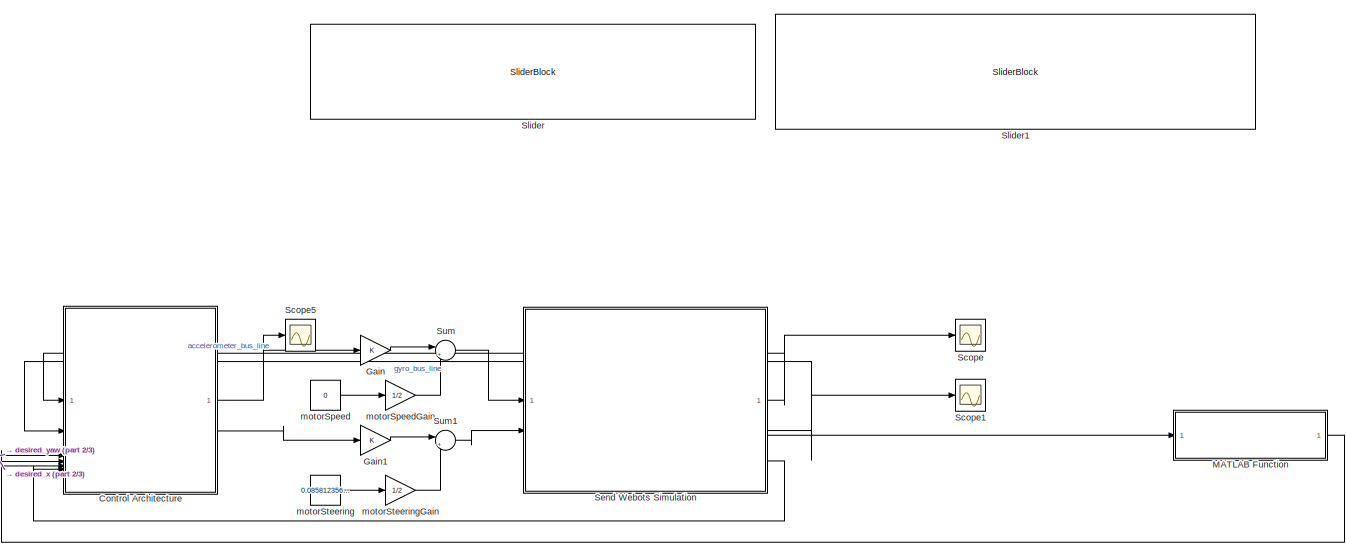
[diagram: root canvas - part 1/3, full width, top band]
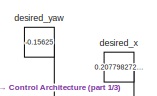
[diagram: root canvas - part 2/3, middle left region]
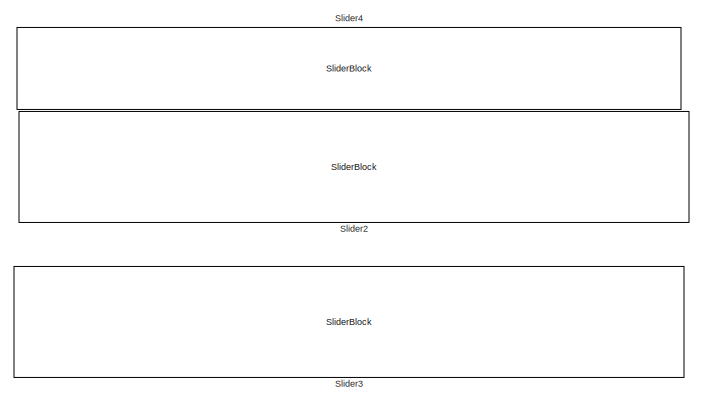
[diagram: root canvas - part 3/3, bottom center region]
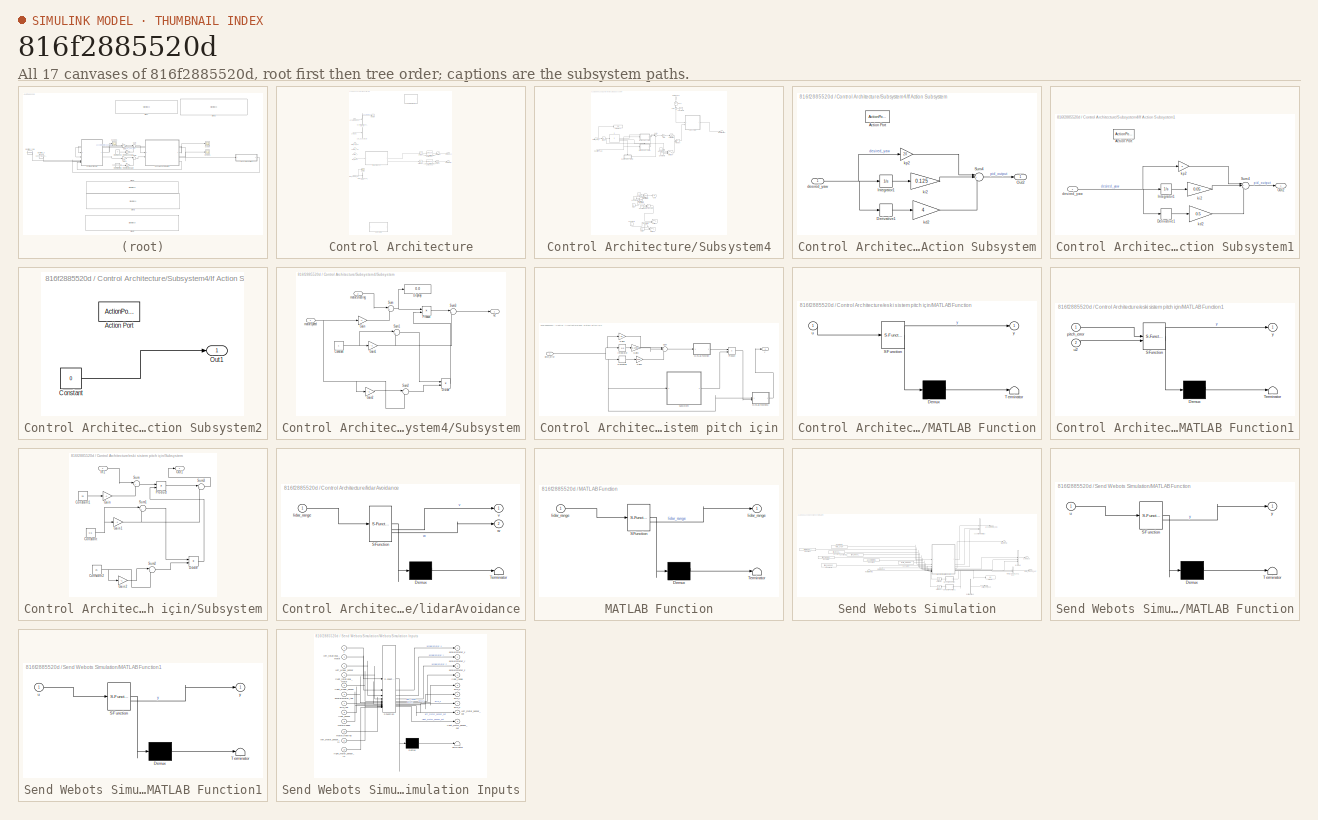
[diagram: thumbnail index - all 17 canvases of the model, root first then tree order]
MODEL slx_816f2885520d
KIND model
CONFIG AbsTol = auto
CONFIG EnableMultiTasking = off
CONFIG FixedStep = 0.016
CONFIG MaxStep = auto
CONFIG MinStep = auto
CONFIG RelTol = 1e-3
CONFIG SampleTimeConstraint = Unconstrained
CONFIG SolverName = ode5
CONFIG StartTime = 0.0
CONFIG StopTime = inf
BLOCK [SubSystem] Control Architecture
BLOCK [Integrator] Control Architecture/Integrator
BLOCK [Reference] Control Architecture/Low-Pass Filter (Discrete or Continuous)  REF=eeGeneralControl/Low-Pass Filter
(Discrete or Continuous)
  LibrarySourceBlock = ee_sl_lib/General Control/Low-Pass Filter\n(Discrete or Continuous)
  SourceBlock = eeGeneralControl/Low-Pass Filter\n(Discrete or Continuous)
  SourceType = Low-Pass Filter (Discrete or Continuous)
BLOCK [Reference] Control Architecture/Low-Pass Filter (Discrete or Continuous)1  REF=eeGeneralControl/Low-Pass Filter
(Discrete or Continuous)
  LibrarySourceBlock = ee_sl_lib/General Control/Low-Pass Filter\n(Discrete or Continuous)
  SourceBlock = eeGeneralControl/Low-Pass Filter\n(Discrete or Continuous)
  SourceType = Low-Pass Filter (Discrete or Continuous)
BLOCK [Saturate] Control Architecture/Saturation1
  LowerLimit = -15
  UpperLimit = 15
BLOCK [Saturate] Control Architecture/Saturation2
  LowerLimit = -15
  UpperLimit = 15
BLOCK [Scope] Control Architecture/Scope
  Floating = off
  NumInputPorts = 1
  ScopeSpecificationString = Simulink.scopes.TimeScopeBlockCfg('CurrentConfiguration', extmgr.ConfigurationSet(extmgr.Configuration('Core','General UI',true),extmgr.Configuration('Core','Source UI',true),extmgr.Configuration('Sources','WiredSimulink',true,'DataLoggingVariableName','ScopeData1'),extmgr.Configuration('Visuals','Time Domain',true,'SerializedDisplays',{struct('MinYLimReal','-1.00000','MaxYLimReal','1.00000','YLab...<+1645ch>
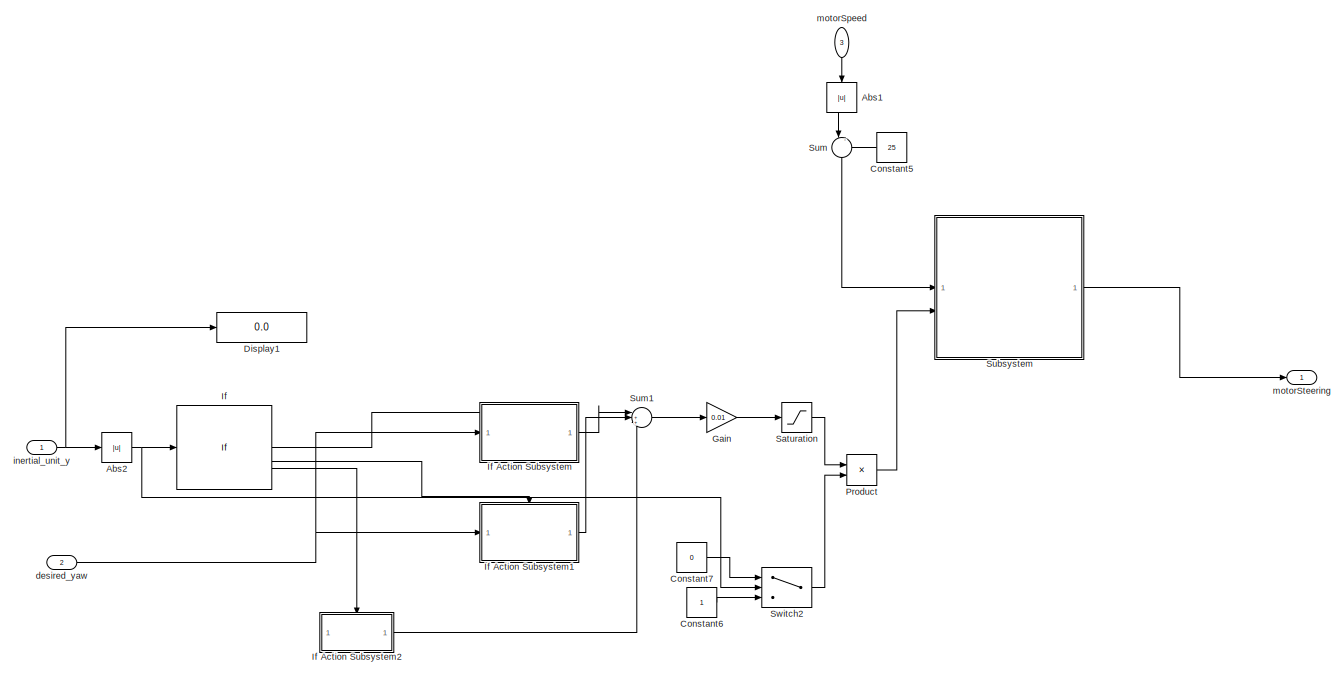
[diagram: Control Architecture/Subsystem4 - part 1/2, full width, top band]
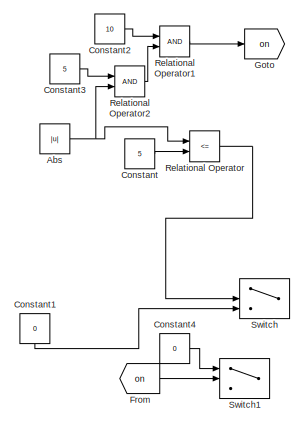
[diagram: Control Architecture/Subsystem4 - part 2/2, bottom center region]
BLOCK [SubSystem] Control Architecture/Subsystem4
  Commented = on
  PortSchema = {"entries":[{"content":{"sides":[{"content":{"connectorIds":["In1","In2"]},"type":"ConnectorPlacement.EquallySpacedRectSide","uuid":"8ea77c90-69e3-4b28-847a-36c3733c4ca1"},{"content":{"connectorIds":["Out1"],"side":"RIGHT"},"type":"ConnectorPlacement.EquallySpacedRectSide","uuid":"94f1f4b2-c797-44bf-abc2-6d3fe195cf34"},{"content":{"connectorIds":["In3"],"side":"TOP"},"type":"ConnectorPlacement.Equ...<+251ch>
BLOCK [Abs] Control Architecture/Subsystem4/Abs
  Commented = on
  SaturateOnIntegerOverflow = off
BLOCK [Abs] Control Architecture/Subsystem4/Abs1
  NameLocation = left
  SaturateOnIntegerOverflow = off
BLOCK [Abs] Control Architecture/Subsystem4/Abs2
  SaturateOnIntegerOverflow = off
BLOCK [Constant] Control Architecture/Subsystem4/Constant
  Commented = on
  Value = 5
BLOCK [Constant] Control Architecture/Subsystem4/Constant1
  Commented = on
  NameLocation = left
  Value = 0
BLOCK [Constant] Control Architecture/Subsystem4/Constant2
  Commented = on
  Value = 10
BLOCK [Constant] Control Architecture/Subsystem4/Constant3
  Commented = on
  Value = 5
BLOCK [Constant] Control Architecture/Subsystem4/Constant4
  Commented = on
  Value = 0
BLOCK [Constant] Control Architecture/Subsystem4/Constant5
  NameLocation = top
  Value = 25
BLOCK [Constant] Control Architecture/Subsystem4/Constant6
BLOCK [Constant] Control Architecture/Subsystem4/Constant7
  Value = 0
BLOCK [Display] Control Architecture/Subsystem4/Display1
  Decimation = 1
BLOCK [From] Control Architecture/Subsystem4/From
  Commented = on
  GotoTag = on
BLOCK [Gain] Control Architecture/Subsystem4/Gain
  Gain = 0.01
BLOCK [Goto] Control Architecture/Subsystem4/Goto
  Commented = on
  GotoTag = on
BLOCK [If] Control Architecture/Subsystem4/If
  ElseIfExpressions = 10>u1>5
  IfExpression = 5>u1 > 0
BLOCK [SubSystem] Control Architecture/Subsystem4/If Action Subsystem
  TreatAsAtomicUnit = on
BLOCK [ActionPort] Control Architecture/Subsystem4/If Action Subsystem/Action Port
BLOCK [Derivative] Control Architecture/Subsystem4/If Action Subsystem/Derivative1
  CoefficientInTFapproximation = 0.016
BLOCK [Integrator] Control Architecture/Subsystem4/If Action Subsystem/Integrator1
BLOCK [Outport] Control Architecture/Subsystem4/If Action Subsystem/Out2
BLOCK [Sum] Control Architecture/Subsystem4/If Action Subsystem/Sum4
  Inputs = |+++
BLOCK [Inport] Control Architecture/Subsystem4/If Action Subsystem/desired_yaw
BLOCK [Gain] Control Architecture/Subsystem4/If Action Subsystem/kd2
  Gain = 4
BLOCK [Gain] Control Architecture/Subsystem4/If Action Subsystem/ki2
  Gain = 0.125
BLOCK [Gain] Control Architecture/Subsystem4/If Action Subsystem/kp2
  Gain = 20
BLOCK [SubSystem] Control Architecture/Subsystem4/If Action Subsystem1
  TreatAsAtomicUnit = on
BLOCK [ActionPort] Control Architecture/Subsystem4/If Action Subsystem1/Action Port
BLOCK [Derivative] Control Architecture/Subsystem4/If Action Subsystem1/Derivative1
  CoefficientInTFapproximation = 0.016
BLOCK [Integrator] Control Architecture/Subsystem4/If Action Subsystem1/Integrator1
BLOCK [Outport] Control Architecture/Subsystem4/If Action Subsystem1/Out2
BLOCK [Sum] Control Architecture/Subsystem4/If Action Subsystem1/Sum4
  Inputs = |+++
BLOCK [Inport] Control Architecture/Subsystem4/If Action Subsystem1/desired_yaw
BLOCK [Gain] Control Architecture/Subsystem4/If Action Subsystem1/kd2
  Gain = 0.5
BLOCK [Gain] Control Architecture/Subsystem4/If Action Subsystem1/ki2
  Gain = 0.05
BLOCK [Gain] Control Architecture/Subsystem4/If Action Subsystem1/kp2
  Gain = 5
BLOCK [SubSystem] Control Architecture/Subsystem4/If Action Subsystem2
  TreatAsAtomicUnit = on
BLOCK [ActionPort] Control Architecture/Subsystem4/If Action Subsystem2/Action Port
BLOCK [Constant] Control Architecture/Subsystem4/If Action Subsystem2/Constant
  Value = 0
BLOCK [Outport] Control Architecture/Subsystem4/If Action Subsystem2/Out1
BLOCK [Product] Control Architecture/Subsystem4/Product
BLOCK [RelationalOperator] Control Architecture/Subsystem4/Relational Operator
  Commented = on
  InputSameDT = off
  Operator = <=
  OutDataTypeStr = boolean
  RndMeth = Simplest
BLOCK [RelationalOperator] Control Architecture/Subsystem4/Relational Operator1
  Commented = on
  InputSameDT = off
  OutDataTypeStr = boolean
  RndMeth = Simplest
BLOCK [RelationalOperator] Control Architecture/Subsystem4/Relational Operator2
  Commented = on
  InputSameDT = off
  OutDataTypeStr = boolean
  RndMeth = Simplest
BLOCK [Saturate] Control Architecture/Subsystem4/Saturation
  LowerLimit = -1000
  UpperLimit = 1000
BLOCK [SubSystem] Control Architecture/Subsystem4/Subsystem
BLOCK [Constant] Control Architecture/Subsystem4/Subsystem/Constant
BLOCK [Display] Control Architecture/Subsystem4/Subsystem/Display
  Decimation = 1
BLOCK [Product] Control Architecture/Subsystem4/Subsystem/Divide
  Inputs = */
BLOCK [Gain] Control Architecture/Subsystem4/Subsystem/Gain
  Gain = -1
BLOCK [Gain] Control Architecture/Subsystem4/Subsystem/Gain1
  Gain = -1
BLOCK [Gain] Control Architecture/Subsystem4/Subsystem/Gain2
  Gain = -1
BLOCK [Product] Control Architecture/Subsystem4/Subsystem/Product
BLOCK [Sum] Control Architecture/Subsystem4/Subsystem/Sum
  Inputs = |+-
BLOCK [Sum] Control Architecture/Subsystem4/Subsystem/Sum1
  Inputs = |+-
BLOCK [Sum] Control Architecture/Subsystem4/Subsystem/Sum2
  Inputs = |-+
BLOCK [Sum] Control Architecture/Subsystem4/Subsystem/Sum3
  Inputs = |++
BLOCK [Inport] Control Architecture/Subsystem4/Subsystem/motorSpeed
BLOCK [Inport] Control Architecture/Subsystem4/Subsystem/motorSteering
  Port = 2
BLOCK [Outport] Control Architecture/Subsystem4/Subsystem/u2
BLOCK [Sum] Control Architecture/Subsystem4/Sum
  Inputs = |-+
  NameLocation = left
BLOCK [Sum] Control Architecture/Subsystem4/Sum1
  Inputs = |+++
BLOCK [Switch] Control Architecture/Subsystem4/Switch
  Commented = on
  Criteria = u2 > Threshold
  InputSameDT = off
  SaturateOnIntegerOverflow = off
  Threshold = 5
BLOCK [Switch] Control Architecture/Subsystem4/Switch1
  Commented = on
  Criteria = u2 > Threshold
  InputSameDT = off
  SaturateOnIntegerOverflow = off
  Threshold = 10
BLOCK [Switch] Control Architecture/Subsystem4/Switch2
  Criteria = u2 > Threshold
  InputSameDT = off
  SaturateOnIntegerOverflow = off
  Threshold = 11
BLOCK [Inport] Control Architecture/Subsystem4/desired_yaw
  Port = 2
BLOCK [Inport] Control Architecture/Subsystem4/inertial_unit_y
BLOCK [Inport] Control Architecture/Subsystem4/motorSpeed
  NameLocation = left
  Port = 3
BLOCK [Outport] Control Architecture/Subsystem4/motorSteering
BLOCK [UnitDelay] Control Architecture/Unit Delay1
  HasFrameUpgradeWarning = on
  SampleTime = -1
BLOCK [UnitDelay] Control Architecture/Unit Delay5
  HasFrameUpgradeWarning = on
  SampleTime = -1
BLOCK [Inport] Control Architecture/accelerometer_bus
BLOCK [BusSelector] Control Architecture/accelerometer_bus_selector
  OutputSignals = accelerometer_x,accelerometer_y,accelerometer_z
BLOCK [Inport] Control Architecture/desired_x
  Port = 5
BLOCK [Inport] Control Architecture/desired_yaw
  Port = 4
BLOCK [SubSystem] Control Architecture/eski sistem pitch için
  Commented = on
BLOCK [Derivative] Control Architecture/eski sistem pitch için/Derivative
  CoefficientInTFapproximation = 0.016
BLOCK [Gain] Control Architecture/eski sistem pitch için/Gain2
  Gain = 40
BLOCK [Gain] Control Architecture/eski sistem pitch için/Gain3
  Gain = 0.1725
BLOCK [Gain] Control Architecture/eski sistem pitch için/Gain4
  Gain = 5.25
BLOCK [Integrator] Control Architecture/eski sistem pitch için/Integrator
BLOCK [SubSystem] Control Architecture/eski sistem pitch için/MATLAB Function
  ErrorFcn = Stateflow.Translate.translate
  PermitHierarchicalResolution = ExplicitOnly
  SFBlockType = MATLAB Function
  TreatAsAtomicUnit = on
BLOCK [Demux] Control Architecture/eski sistem pitch için/MATLAB Function/ Demux 
  Outputs = 1
BLOCK [S-Function] Control Architecture/eski sistem pitch için/MATLAB Function/ SFunction 
  EnableBusSupport = off
  FunctionName = sf_sfun
  PortCounts = [1 2]
  SFcnIsStateOwnerBlock = off
  SFunctionDeploymentMode = off
  Tag = Stateflow S-Function 11
BLOCK [Terminator] Control Architecture/eski sistem pitch için/MATLAB Function/ Terminator 
BLOCK [Inport] Control Architecture/eski sistem pitch için/MATLAB Function/u
BLOCK [Outport] Control Architecture/eski sistem pitch için/MATLAB Function/y
BLOCK [SubSystem] Control Architecture/eski sistem pitch için/MATLAB Function1
  ErrorFcn = Stateflow.Translate.translate
  PermitHierarchicalResolution = ExplicitOnly
  SFBlockType = MATLAB Function
  TreatAsAtomicUnit = on
BLOCK [Demux] Control Architecture/eski sistem pitch için/MATLAB Function1/ Demux 
  Outputs = 1
BLOCK [S-Function] Control Architecture/eski sistem pitch için/MATLAB Function1/ SFunction 
  EnableBusSupport = off
  FunctionName = sf_sfun
  PortCounts = [2 2]
  SFcnIsStateOwnerBlock = off
  SFunctionDeploymentMode = off
  Tag = Stateflow S-Function 13
BLOCK [Terminator] Control Architecture/eski sistem pitch için/MATLAB Function1/ Terminator 
BLOCK [Inport] Control Architecture/eski sistem pitch için/MATLAB Function1/pitch_error
BLOCK [Inport] Control Architecture/eski sistem pitch için/MATLAB Function1/u2
  Port = 2
BLOCK [Outport] Control Architecture/eski sistem pitch için/MATLAB Function1/y
BLOCK [Product] Control Architecture/eski sistem pitch için/Product
BLOCK [SubSystem] Control Architecture/eski sistem pitch için/Subsystem
BLOCK [Constant] Control Architecture/eski sistem pitch için/Subsystem/Constant
  Value = 0.5
BLOCK [Constant] Control Architecture/eski sistem pitch için/Subsystem/Constant1
  Value = 25
BLOCK [Constant] Control Architecture/eski sistem pitch için/Subsystem/Constant2
  Value = 25
BLOCK [Product] Control Architecture/eski sistem pitch için/Subsystem/Divide
  Inputs = */
BLOCK [Gain] Control Architecture/eski sistem pitch için/Subsystem/Gain
  Gain = -1
BLOCK [Gain] Control Architecture/eski sistem pitch için/Subsystem/Gain1
  Gain = -1
BLOCK [Gain] Control Architecture/eski sistem pitch için/Subsystem/Gain2
  Gain = -1
BLOCK [Inport] Control Architecture/eski sistem pitch için/Subsystem/In1
BLOCK [Outport] Control Architecture/eski sistem pitch için/Subsystem/Out1
BLOCK [Product] Control Architecture/eski sistem pitch için/Subsystem/Product
BLOCK [Sum] Control Architecture/eski sistem pitch için/Subsystem/Sum
  Inputs = |+-
BLOCK [Sum] Control Architecture/eski sistem pitch için/Subsystem/Sum1
  Inputs = |+-
BLOCK [Sum] Control Architecture/eski sistem pitch için/Subsystem/Sum2
  Inputs = |-+
BLOCK [Sum] Control Architecture/eski sistem pitch için/Subsystem/Sum3
  Inputs = |++
BLOCK [Sum] Control Architecture/eski sistem pitch için/Sum
  Inputs = |+++
BLOCK [Inport] Control Architecture/eski sistem pitch için/pitch_error
BLOCK [Outport] Control Architecture/eski sistem pitch için/y
BLOCK [Inport] Control Architecture/gyro_bus
  Port = 2
BLOCK [BusSelector] Control Architecture/gyro_bus_selector
  OutputSignals = gyro_x,gyro_y,gyro_z
BLOCK [Inport] Control Architecture/inertial_unit_bus
  Port = 3
BLOCK [SubSystem] Control Architecture/lidarAvoidance
  ErrorFcn = Stateflow.Translate.translate
  PermitHierarchicalResolution = ExplicitOnly
  SFBlockType = MATLAB Function
  TreatAsAtomicUnit = on
BLOCK [Demux] Control Architecture/lidarAvoidance/ Demux 
  Outputs = 1
BLOCK [S-Function] Control Architecture/lidarAvoidance/ SFunction 
  EnableBusSupport = on
  FunctionName = sf_sfun
  PortCounts = [1 3]
  SFcnIsStateOwnerBlock = off
  SFunctionDeploymentMode = off
  Tag = Stateflow S-Function 3
BLOCK [Terminator] Control Architecture/lidarAvoidance/ Terminator 
BLOCK [Inport] Control Architecture/lidarAvoidance/lidar_range
BLOCK [Outport] Control Architecture/lidarAvoidance/v
BLOCK [Outport] Control Architecture/lidarAvoidance/w
  Port = 2
BLOCK [Inport] Control Architecture/lidar_range
  Port = 6
BLOCK [Outport] Control Architecture/motorSpeed
BLOCK [Outport] Control Architecture/motorSteering
  Port = 2
BLOCK [Inport] Control Architecture/motor_sensor_out
  Port = 7
BLOCK [BusSelector] Control Architecture/motor_sensor_out_bus
  OutputSignals = left_motor_sensor_out,right_motor_sensor_out
BLOCK [Gain] Gain
BLOCK [Gain] Gain1
BLOCK [SubSystem] MATLAB Function
  ErrorFcn = Stateflow.Translate.translate
  PermitHierarchicalResolution = ExplicitOnly
  SFBlockType = MATLAB Function
  TreatAsAtomicUnit = on
BLOCK [Demux] MATLAB Function/ Demux 
  Outputs = 1
BLOCK [S-Function] MATLAB Function/ SFunction 
  EnableBusSupport = on
  FunctionName = sf_sfun
  PortCounts = [1 2]
  SFcnIsStateOwnerBlock = off
  SFunctionDeploymentMode = off
  Tag = Stateflow S-Function 1
BLOCK [Terminator] MATLAB Function/ Terminator 
BLOCK [Outport] MATLAB Function/lidar_range
BLOCK [Inport] MATLAB Function/lidar_range 
BLOCK [Scope] Scope
  Floating = off
  NumInputPorts = 1
  ScopeSpecificationString = Simulink.scopes.TimeScopeBlockCfg('CurrentConfiguration', extmgr.ConfigurationSet(extmgr.Configuration('Core','General UI',true),extmgr.Configuration('Core','Source UI',true),extmgr.Configuration('Sources','WiredSimulink',true),extmgr.Configuration('Visuals','Time Domain',true,'SerializedDisplays',{struct('MinYLimReal','-10.83442','MaxYLimReal','1.20785','YLabelReal','','MinYLimMag','0.00000','Max...<+1517ch>
BLOCK [Scope] Scope1
  Floating = off
  NumInputPorts = 1
  ScopeSpecificationString = Simulink.scopes.TimeScopeBlockCfg('CurrentConfiguration', extmgr.ConfigurationSet(extmgr.Configuration('Core','General UI',true),extmgr.Configuration('Core','Source UI',true),extmgr.Configuration('Sources','WiredSimulink',true,'DataLoggingVariableName','ScopeData1'),extmgr.Configuration('Visuals','Time Domain',true,'SerializedDisplays',{struct('MinYLimReal','-0.09822','MaxYLimReal','0.01091','YLab...<+1526ch>
BLOCK [Scope] Scope5
  Floating = off
  NumInputPorts = 1
  ScopeSpecificationString = Simulink.scopes.TimeScopeBlockCfg('CurrentConfiguration', extmgr.ConfigurationSet(extmgr.Configuration('Core','General UI',true),extmgr.Configuration('Core','Source UI',true),extmgr.Configuration('Sources','WiredSimulink',true,'DataLoggingVariableName','ScopeData5'),extmgr.Configuration('Visuals','Time Domain',true,'SerializedDisplays',{struct('MinYLimReal','3.54618','MaxYLimReal','3.59684','YLabe...<+1474ch>
BLOCK [SubSystem] Send Webots Simulation
BLOCK [BusCreator] Send Webots Simulation/AccelerometerBus
  DisplayOption = bar
  InheritFromInputs = on
  Inputs = 3
BLOCK [Constant] Send Webots Simulation/Constant
  Value = left_wheel_motor
BLOCK [Constant] Send Webots Simulation/Constant1
  Value = right_wheel_motor
BLOCK [Constant] Send Webots Simulation/Constant2
  Value = TIME_STEP
BLOCK [Constant] Send Webots Simulation/Constant3
  Value = accelerometer_sensor
BLOCK [Constant] Send Webots Simulation/Constant4
  Value = gyro_sensor
BLOCK [Constant] Send Webots Simulation/Constant5
  Value = lidar_sensor
BLOCK [Constant] Send Webots Simulation/Constant6
  Value = right_wheel_sensor
BLOCK [Constant] Send Webots Simulation/Constant7
  Value = left_wheel_sensor
BLOCK [Display] Send Webots Simulation/Display
  Decimation = 1
BLOCK [BusCreator] Send Webots Simulation/GyroBus
  DisplayOption = bar
  InheritFromInputs = on
  Inputs = 3
  NameLocation = right
BLOCK [BusCreator] Send Webots Simulation/InertialUnitBus
  DisplayOption = bar
  InheritFromInputs = on
  Inputs = 3
  NameLocation = right
BLOCK [SubSystem] Send Webots Simulation/MATLAB Function
  ErrorFcn = Stateflow.Translate.translate
  NameLocation = top
  PermitHierarchicalResolution = ExplicitOnly
  SFBlockType = MATLAB Function
  TreatAsAtomicUnit = on
BLOCK [Demux] Send Webots Simulation/MATLAB Function/ Demux 
  Outputs = 1
BLOCK [S-Function] Send Webots Simulation/MATLAB Function/ SFunction 
  EnableBusSupport = on
  FunctionName = sf_sfun
  PortCounts = [1 2]
  SFcnIsStateOwnerBlock = off
  SFunctionDeploymentMode = off
  Tag = Stateflow S-Function 4
BLOCK [Terminator] Send Webots Simulation/MATLAB Function/ Terminator 
BLOCK [Inport] Send Webots Simulation/MATLAB Function/u
BLOCK [Outport] Send Webots Simulation/MATLAB Function/y
BLOCK [SubSystem] Send Webots Simulation/MATLAB Function1
  ErrorFcn = Stateflow.Translate.translate
  NameLocation = top
  PermitHierarchicalResolution = ExplicitOnly
  SFBlockType = MATLAB Function
  TreatAsAtomicUnit = on
BLOCK [Demux] Send Webots Simulation/MATLAB Function1/ Demux 
  Outputs = 1
BLOCK [S-Function] Send Webots Simulation/MATLAB Function1/ SFunction 
  EnableBusSupport = on
  FunctionName = sf_sfun
  PortCounts = [1 2]
  SFcnIsStateOwnerBlock = off
  SFunctionDeploymentMode = off
  Tag = Stateflow S-Function 5
BLOCK [Terminator] Send Webots Simulation/MATLAB Function1/ Terminator 
BLOCK [Inport] Send Webots Simulation/MATLAB Function1/u
BLOCK [Outport] Send Webots Simulation/MATLAB Function1/y
BLOCK [UnitDelay] Send Webots Simulation/Unit Delay
  HasFrameUpgradeWarning = on
  NameLocation = top
  SampleTime = -1
BLOCK [UnitDelay] Send Webots Simulation/Unit Delay1
  HasFrameUpgradeWarning = on
  NameLocation = top
  SampleTime = -1
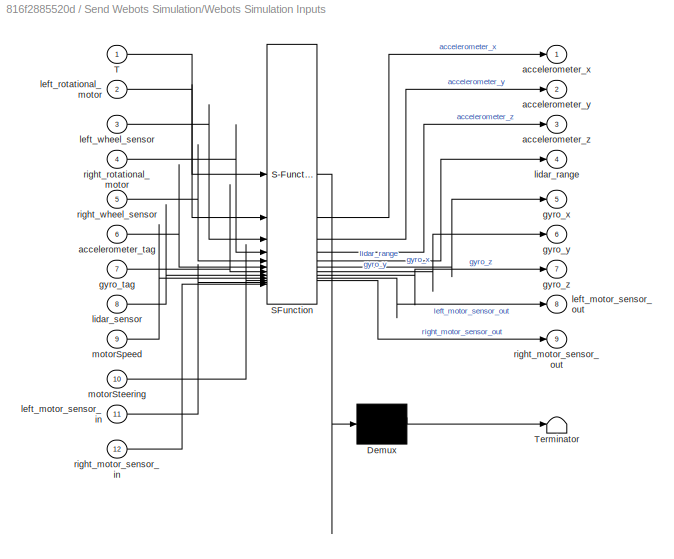
BLOCK [SubSystem] Send Webots Simulation/Webots Simulation Inputs
  ErrorFcn = Stateflow.Translate.translate
  PermitHierarchicalResolution = ExplicitOnly
  SFBlockType = MATLAB Function
  TreatAsAtomicUnit = on
BLOCK [Demux] Send Webots Simulation/Webots Simulation Inputs/ Demux 
  Outputs = 1
BLOCK [S-Function] Send Webots Simulation/Webots Simulation Inputs/ SFunction 
  EnableBusSupport = on
  FunctionName = sf_sfun
  PortCounts = [12 10]
  SFcnIsStateOwnerBlock = off
  SFunctionDeploymentMode = off
  Tag = Stateflow S-Function 2
BLOCK [Terminator] Send Webots Simulation/Webots Simulation Inputs/ Terminator 
BLOCK [Inport] Send Webots Simulation/Webots Simulation Inputs/T
BLOCK [Inport] Send Webots Simulation/Webots Simulation Inputs/accelerometer_tag
  Port = 6
BLOCK [Outport] Send Webots Simulation/Webots Simulation Inputs/accelerometer_x
BLOCK [Outport] Send Webots Simulation/Webots Simulation Inputs/accelerometer_y
  Port = 2
BLOCK [Outport] Send Webots Simulation/Webots Simulation Inputs/accelerometer_z
  Port = 3
BLOCK [Inport] Send Webots Simulation/Webots Simulation Inputs/gyro_tag
  Port = 7
BLOCK [Outport] Send Webots Simulation/Webots Simulation Inputs/gyro_x
  Port = 5
BLOCK [Outport] Send Webots Simulation/Webots Simulation Inputs/gyro_y
  Port = 6
BLOCK [Outport] Send Webots Simulation/Webots Simulation Inputs/gyro_z
  Port = 7
BLOCK [Inport] Send Webots Simulation/Webots Simulation Inputs/left_motor_sensor_in
  Port = 11
BLOCK [Outport] Send Webots Simulation/Webots Simulation Inputs/left_motor_sensor_out
  Port = 8
BLOCK [Inport] Send Webots Simulation/Webots Simulation Inputs/left_rotational_motor
  Port = 2
BLOCK [Inport] Send Webots Simulation/Webots Simulation Inputs/left_wheel_sensor
  Port = 3
BLOCK [Outport] Send Webots Simulation/Webots Simulation Inputs/lidar_range
  Port = 4
BLOCK [Inport] Send Webots Simulation/Webots Simulation Inputs/lidar_sensor
  Port = 8
BLOCK [Inport] Send Webots Simulation/Webots Simulation Inputs/motorSpeed
  Port = 9
BLOCK [Inport] Send Webots Simulation/Webots Simulation Inputs/motorSteering
  Port = 10
BLOCK [Inport] Send Webots Simulation/Webots Simulation Inputs/right_motor_sensor_in
  Port = 12
BLOCK [Outport] Send Webots Simulation/Webots Simulation Inputs/right_motor_sensor_out
  Port = 9
BLOCK [Inport] Send Webots Simulation/Webots Simulation Inputs/right_rotational_motor
  Port = 4
BLOCK [Inport] Send Webots Simulation/Webots Simulation Inputs/right_wheel_sensor
  Port = 5
BLOCK [Outport] Send Webots Simulation/accelerometer_bus
BLOCK [Outport] Send Webots Simulation/gyro_bus
  Port = 2
BLOCK [Outport] Send Webots Simulation/inertial_unit_bus
  Port = 3
BLOCK [Outport] Send Webots Simulation/lidar_range
  Port = 4
BLOCK [Inport] Send Webots Simulation/motorSpeed
BLOCK [Inport] Send Webots Simulation/motorSteering
  Port = 2
BLOCK [Outport] Send Webots Simulation/motor_sensor_out
  Port = 5
BLOCK [BusCreator] Send Webots Simulation/motor_sensor_out_bus
  DisplayOption = bar
  InheritFromInputs = on
  Inputs = 2
  NameLocation = right
BLOCK [SliderBlock] Slider
  ScaleMax = 22.5
  ScaleMin = -22.5
  TickInterval = 2.5
BLOCK [SliderBlock] Slider1
  ScaleMax = 22.5
  ScaleMin = -22.5
  TickInterval = 2.5
BLOCK [SliderBlock] Slider2
  ScaleMax = 10
  ScaleMin = -10
  TickInterval = 1
BLOCK [SliderBlock] Slider3
  Commented = on
  ScaleMax = 150
  ScaleMin = -150
  TickInterval = 10
BLOCK [SliderBlock] Slider4
  ScaleMax = 10
  ScaleMin = -10
BLOCK [Sum] Sum
  Inputs = |++
BLOCK [Sum] Sum1
  Inputs = |++
BLOCK [Constant] desired_x
  Value = 0.2077982722390832
BLOCK [Constant] desired_yaw
  Value = -0.15625
BLOCK [Constant] motorSpeed
  Value = 0
BLOCK [Gain] motorSpeedGain
  Gain = 1/2
BLOCK [Constant] motorSteering
  Value = 0.0858123569794067
BLOCK [Gain] motorSteeringGain
  Gain = 1/2
LINE Control Architecture/Low-Pass Filter (Discrete or Continuous)1:1 -> Control Architecture/Saturation2:1
LINE Control Architecture/Low-Pass Filter (Discrete or Continuous):1 -> Control Architecture/Saturation1:1
LINE Control Architecture/Saturation1:1 -> Control Architecture/motorSpeed:1
LINE Control Architecture/Saturation2:1 -> Control Architecture/motorSteering:1
LINE Control Architecture/Subsystem4/Abs1:1 -> Control Architecture/Subsystem4/Sum:1
NET Control Architecture/Subsystem4/Abs2:1 -> Control Architecture/Subsystem4/If:1, Control Architecture/Subsystem4/Switch2:2
NET Control Architecture/Subsystem4/Abs:1 -> Control Architecture/Subsystem4/Relational Operator2:2, Control Architecture/Subsystem4/Relational Operator:1
LINE Control Architecture/Subsystem4/Constant1:1 -> Control Architecture/Subsystem4/Switch:3
LINE Control Architecture/Subsystem4/Constant2:1 -> Control Architecture/Subsystem4/Relational Operator1:1
LINE Control Architecture/Subsystem4/Constant3:1 -> Control Architecture/Subsystem4/Relational Operator2:1
LINE Control Architecture/Subsystem4/Constant4:1 -> Control Architecture/Subsystem4/Switch1:1
LINE Control Architecture/Subsystem4/Constant5:1 -> Control Architecture/Subsystem4/Sum:2
LINE Control Architecture/Subsystem4/Constant6:1 -> Control Architecture/Subsystem4/Switch2:3
LINE Control Architecture/Subsystem4/Constant7:1 -> Control Architecture/Subsystem4/Switch2:1
LINE Control Architecture/Subsystem4/Constant:1 -> Control Architecture/Subsystem4/Relational Operator:2
LINE Control Architecture/Subsystem4/From:1 -> Control Architecture/Subsystem4/Switch1:2
LINE Control Architecture/Subsystem4/Gain:1 -> Control Architecture/Subsystem4/Saturation:1
LINE Control Architecture/Subsystem4/If Action Subsystem/Derivative1:1 -> Control Architecture/Subsystem4/If Action Subsystem/kd2:1
LINE Control Architecture/Subsystem4/If Action Subsystem/Integrator1:1 -> Control Architecture/Subsystem4/If Action Subsystem/ki2:1
LINE Control Architecture/Subsystem4/If Action Subsystem/Sum4:1 -> Control Architecture/Subsystem4/If Action Subsystem/Out2:1
NET Control Architecture/Subsystem4/If Action Subsystem/desired_yaw:1 -> Control Architecture/Subsystem4/If Action Subsystem/Derivative1:1, Control Architecture/Subsystem4/If Action Subsystem/Integrator1:1, Control Architecture/Subsystem4/If Action Subsystem/kp2:1
LINE Control Architecture/Subsystem4/If Action Subsystem/kd2:1 -> Control Architecture/Subsystem4/If Action Subsystem/Sum4:3
LINE Control Architecture/Subsystem4/If Action Subsystem/ki2:1 -> Control Architecture/Subsystem4/If Action Subsystem/Sum4:2
LINE Control Architecture/Subsystem4/If Action Subsystem/kp2:1 -> Control Architecture/Subsystem4/If Action Subsystem/Sum4:1
LINE Control Architecture/Subsystem4/If Action Subsystem1/Derivative1:1 -> Control Architecture/Subsystem4/If Action Subsystem1/kd2:1
LINE Control Architecture/Subsystem4/If Action Subsystem1/Integrator1:1 -> Control Architecture/Subsystem4/If Action Subsystem1/ki2:1
LINE Control Architecture/Subsystem4/If Action Subsystem1/Sum4:1 -> Control Architecture/Subsystem4/If Action Subsystem1/Out2:1
NET Control Architecture/Subsystem4/If Action Subsystem1/desired_yaw:1 -> Control Architecture/Subsystem4/If Action Subsystem1/Derivative1:1, Control Architecture/Subsystem4/If Action Subsystem1/Integrator1:1, Control Architecture/Subsystem4/If Action Subsystem1/kp2:1
LINE Control Architecture/Subsystem4/If Action Subsystem1/kd2:1 -> Control Architecture/Subsystem4/If Action Subsystem1/Sum4:3
LINE Control Architecture/Subsystem4/If Action Subsystem1/ki2:1 -> Control Architecture/Subsystem4/If Action Subsystem1/Sum4:2
LINE Control Architecture/Subsystem4/If Action Subsystem1/kp2:1 -> Control Architecture/Subsystem4/If Action Subsystem1/Sum4:1
LINE Control Architecture/Subsystem4/If Action Subsystem1:1 -> Control Architecture/Subsystem4/Sum1:2
LINE Control Architecture/Subsystem4/If Action Subsystem2/Constant:1 -> Control Architecture/Subsystem4/If Action Subsystem2/Out1:1
LINE Control Architecture/Subsystem4/If Action Subsystem2:1 -> Control Architecture/Subsystem4/Sum1:3
LINE Control Architecture/Subsystem4/If Action Subsystem:1 -> Control Architecture/Subsystem4/Sum1:1
LINE Control Architecture/Subsystem4/If:1 -> Control Architecture/Subsystem4/If Action Subsystem:ifaction
LINE Control Architecture/Subsystem4/If:2 -> Control Architecture/Subsystem4/If Action Subsystem1:ifaction
LINE Control Architecture/Subsystem4/If:3 -> Control Architecture/Subsystem4/If Action Subsystem2:ifaction
LINE Control Architecture/Subsystem4/Product:1 -> Control Architecture/Subsystem4/Subsystem:2
LINE Control Architecture/Subsystem4/Relational Operator1:1 -> Control Architecture/Subsystem4/Goto:1
LINE Control Architecture/Subsystem4/Relational Operator2:1 -> Control Architecture/Subsystem4/Relational Operator1:2
LINE Control Architecture/Subsystem4/Relational Operator:1 -> Control Architecture/Subsystem4/Switch:2
LINE Control Architecture/Subsystem4/Saturation:1 -> Control Architecture/Subsystem4/Product:1
NET Control Architecture/Subsystem4/Subsystem/Constant:1 -> Control Architecture/Subsystem4/Subsystem/Gain1:1, Control Architecture/Subsystem4/Subsystem/Sum1:1
LINE Control Architecture/Subsystem4/Subsystem/Divide:1 -> Control Architecture/Subsystem4/Subsystem/Product:2
NET Control Architecture/Subsystem4/Subsystem/Gain1:1 -> Control Architecture/Subsystem4/Subsystem/Sum1:2, Control Architecture/Subsystem4/Subsystem/Sum3:2
LINE Control Architecture/Subsystem4/Subsystem/Gain2:1 -> Control Architecture/Subsystem4/Subsystem/Sum2:1
LINE Control Architecture/Subsystem4/Subsystem/Gain:1 -> Control Architecture/Subsystem4/Subsystem/Sum:2
LINE Control Architecture/Subsystem4/Subsystem/Product:1 -> Control Architecture/Subsystem4/Subsystem/Sum3:1
LINE Control Architecture/Subsystem4/Subsystem/Sum1:1 -> Control Architecture/Subsystem4/Subsystem/Divide:1
LINE Control Architecture/Subsystem4/Subsystem/Sum2:1 -> Control Architecture/Subsystem4/Subsystem/Divide:2
LINE Control Architecture/Subsystem4/Subsystem/Sum3:1 -> Control Architecture/Subsystem4/Subsystem/u2:1
NET Control Architecture/Subsystem4/Subsystem/Sum:1 -> Control Architecture/Subsystem4/Subsystem/Display:1, Control Architecture/Subsystem4/Subsystem/Product:1
NET Control Architecture/Subsystem4/Subsystem/motorSpeed:1 -> Control Architecture/Subsystem4/Subsystem/Gain2:1, Control Architecture/Subsystem4/Subsystem/Gain:1, Control Architecture/Subsystem4/Subsystem/Sum2:2
LINE Control Architecture/Subsystem4/Subsystem/motorSteering:1 -> Control Architecture/Subsystem4/Subsystem/Sum:1
LINE Control Architecture/Subsystem4/Subsystem:1 -> Control Architecture/Subsystem4/motorSteering:1
LINE Control Architecture/Subsystem4/Sum1:1 -> Control Architecture/Subsystem4/Gain:1
LINE Control Architecture/Subsystem4/Sum:1 -> Control Architecture/Subsystem4/Subsystem:1
LINE Control Architecture/Subsystem4/Switch2:1 -> Control Architecture/Subsystem4/Product:2
NET Control Architecture/Subsystem4/desired_yaw:1 -> Control Architecture/Subsystem4/If Action Subsystem1:1, Control Architecture/Subsystem4/If Action Subsystem:1
NET Control Architecture/Subsystem4/inertial_unit_y:1 -> Control Architecture/Subsystem4/Abs2:1, Control Architecture/Subsystem4/Display1:1
LINE Control Architecture/Subsystem4/motorSpeed:1 -> Control Architecture/Subsystem4/Abs1:1
LINE Control Architecture/Unit Delay1:1 -> Control Architecture/Low-Pass Filter (Discrete or Continuous):1
LINE Control Architecture/Unit Delay5:1 -> Control Architecture/Low-Pass Filter (Discrete or Continuous)1:1
LINE Control Architecture/accelerometer_bus:1 -> Control Architecture/accelerometer_bus_selector:1
LINE Control Architecture/accelerometer_bus_selector:1 -> Control Architecture/Integrator:1
LINE Control Architecture/eski sistem pitch için/Derivative:1 -> Control Architecture/eski sistem pitch için/Gain4:1
LINE Control Architecture/eski sistem pitch için/Gain2:1 -> Control Architecture/eski sistem pitch için/Sum:1
LINE Control Architecture/eski sistem pitch için/Gain3:1 -> Control Architecture/eski sistem pitch için/Sum:2
LINE Control Architecture/eski sistem pitch için/Gain4:1 -> Control Architecture/eski sistem pitch için/Sum:3
LINE Control Architecture/eski sistem pitch için/Integrator:1 -> Control Architecture/eski sistem pitch için/Gain3:1
LINE Control Architecture/eski sistem pitch için/MATLAB Function1:1 -> Control Architecture/eski sistem pitch için/y:1
LINE Control Architecture/eski sistem pitch için/MATLAB Function:1 -> Control Architecture/eski sistem pitch için/Product:1
LINE Control Architecture/eski sistem pitch için/Product:1 -> Control Architecture/eski sistem pitch için/MATLAB Function1:2
LINE Control Architecture/eski sistem pitch için/Subsystem/Constant1:1 -> Control Architecture/eski sistem pitch için/Subsystem/Gain:1
NET Control Architecture/eski sistem pitch için/Subsystem/Constant2:1 -> Control Architecture/eski sistem pitch için/Subsystem/Gain2:1, Control Architecture/eski sistem pitch için/Subsystem/Sum2:2
NET Control Architecture/eski sistem pitch için/Subsystem/Constant:1 -> Control Architecture/eski sistem pitch için/Subsystem/Gain1:1, Control Architecture/eski sistem pitch için/Subsystem/Sum1:1
LINE Control Architecture/eski sistem pitch için/Subsystem/Divide:1 -> Control Architecture/eski sistem pitch için/Subsystem/Product:2
NET Control Architecture/eski sistem pitch için/Subsystem/Gain1:1 -> Control Architecture/eski sistem pitch için/Subsystem/Sum1:2, Control Architecture/eski sistem pitch için/Subsystem/Sum3:2
LINE Control Architecture/eski sistem pitch için/Subsystem/Gain2:1 -> Control Architecture/eski sistem pitch için/Subsystem/Sum2:1
LINE Control Architecture/eski sistem pitch için/Subsystem/Gain:1 -> Control Architecture/eski sistem pitch için/Subsystem/Sum:2
LINE Control Architecture/eski sistem pitch için/Subsystem/In1:1 -> Control Architecture/eski sistem pitch için/Subsystem/Sum:1
LINE Control Architecture/eski sistem pitch için/Subsystem/Product:1 -> Control Architecture/eski sistem pitch için/Subsystem/Sum3:1
LINE Control Architecture/eski sistem pitch için/Subsystem/Sum1:1 -> Control Architecture/eski sistem pitch için/Subsystem/Divide:1
LINE Control Architecture/eski sistem pitch için/Subsystem/Sum2:1 -> Control Architecture/eski sistem pitch için/Subsystem/Divide:2
LINE Control Architecture/eski sistem pitch için/Subsystem/Sum3:1 -> Control Architecture/eski sistem pitch için/Subsystem/Out1:1
LINE Control Architecture/eski sistem pitch için/Subsystem/Sum:1 -> Control Architecture/eski sistem pitch için/Subsystem/Product:1
LINE Control Architecture/eski sistem pitch için/Subsystem:1 -> Control Architecture/eski sistem pitch için/Product:2
LINE Control Architecture/eski sistem pitch için/Sum:1 -> Control Architecture/eski sistem pitch için/MATLAB Function:1
NET Control Architecture/eski sistem pitch için/pitch_error:1 -> Control Architecture/eski sistem pitch için/Derivative:1, Control Architecture/eski sistem pitch için/Gain2:1, Control Architecture/eski sistem pitch için/Integrator:1, Control Architecture/eski sistem pitch için/MATLAB Function1:1, Control Architecture/eski sistem pitch için/Subsystem:1
LINE Control Architecture/gyro_bus:1 -> Control Architecture/gyro_bus_selector:1
LINE Control Architecture/lidarAvoidance:1 -> Control Architecture/Unit Delay1:1
LINE Control Architecture/lidarAvoidance:2 -> Control Architecture/Unit Delay5:1
LINE Control Architecture/lidar_range:1 -> Control Architecture/lidarAvoidance:1
NET Control Architecture/motor_sensor_out:1 -> Control Architecture/Scope:1, Control Architecture/motor_sensor_out_bus:1
NET Control Architecture:1 -> Gain:1, Scope5:1
LINE Control Architecture:2 -> Gain1:1
LINE Gain1:1 -> Sum1:1
LINE Gain:1 -> Sum:1
LINE MATLAB Function:1 -> Control Architecture:6
LINE Send Webots Simulation/AccelerometerBus:1 -> Send Webots Simulation/accelerometer_bus:1
LINE Send Webots Simulation/Constant1:1 -> Send Webots Simulation/Webots Simulation Inputs:4
LINE Send Webots Simulation/Constant2:1 -> Send Webots Simulation/Webots Simulation Inputs:1
LINE Send Webots Simulation/Constant3:1 -> Send Webots Simulation/Webots Simulation Inputs:6
LINE Send Webots Simulation/Constant4:1 -> Send Webots Simulation/Webots Simulation Inputs:7
LINE Send Webots Simulation/Constant5:1 -> Send Webots Simulation/Webots Simulation Inputs:8
LINE Send Webots Simulation/Constant6:1 -> Send Webots Simulation/Webots Simulation Inputs:5
LINE Send Webots Simulation/Constant7:1 -> Send Webots Simulation/Webots Simulation Inputs:3
LINE Send Webots Simulation/Constant:1 -> Send Webots Simulation/Webots Simulation Inputs:2
LINE Send Webots Simulation/GyroBus:1 -> Send Webots Simulation/gyro_bus:1
LINE Send Webots Simulation/InertialUnitBus:1 -> Send Webots Simulation/inertial_unit_bus:1
LINE Send Webots Simulation/MATLAB Function1:1 -> Send Webots Simulation/Unit Delay1:1
LINE Send Webots Simulation/MATLAB Function:1 -> Send Webots Simulation/Unit Delay:1
LINE Send Webots Simulation/Unit Delay1:1 -> Send Webots Simulation/Webots Simulation Inputs:11
LINE Send Webots Simulation/Unit Delay:1 -> Send Webots Simulation/Webots Simulation Inputs:12
LINE Send Webots Simulation/Webots Simulation Inputs:1 -> Send Webots Simulation/AccelerometerBus:1
LINE Send Webots Simulation/Webots Simulation Inputs:2 -> Send Webots Simulation/AccelerometerBus:2
LINE Send Webots Simulation/Webots Simulation Inputs:3 -> Send Webots Simulation/AccelerometerBus:3
LINE Send Webots Simulation/Webots Simulation Inputs:4 -> Send Webots Simulation/lidar_range:1
LINE Send Webots Simulation/Webots Simulation Inputs:5 -> Send Webots Simulation/GyroBus:1
LINE Send Webots Simulation/Webots Simulation Inputs:6 -> Send Webots Simulation/GyroBus:2
LINE Send Webots Simulation/Webots Simulation Inputs:7 -> Send Webots Simulation/GyroBus:3
NET Send Webots Simulation/Webots Simulation Inputs:8 -> Send Webots Simulation/Display:1, Send Webots Simulation/MATLAB Function1:1, Send Webots Simulation/motor_sensor_out_bus:1
NET Send Webots Simulation/Webots Simulation Inputs:9 -> Send Webots Simulation/MATLAB Function:1, Send Webots Simulation/motor_sensor_out_bus:2
LINE Send Webots Simulation/motorSpeed:1 -> Send Webots Simulation/Webots Simulation Inputs:9
LINE Send Webots Simulation/motorSteering:1 -> Send Webots Simulation/Webots Simulation Inputs:10
LINE Send Webots Simulation/motor_sensor_out_bus:1 -> Send Webots Simulation/motor_sensor_out:1
NET Send Webots Simulation:1 -> Control Architecture:1, Scope:1
NET Send Webots Simulation:2 -> Control Architecture:2, Scope1:1
LINE Send Webots Simulation:4 -> MATLAB Function:1
LINE Send Webots Simulation:5 -> Control Architecture:7
LINE Sum1:1 -> Send Webots Simulation:2
LINE Sum:1 -> Send Webots Simulation:1
LINE desired_x:1 -> Control Architecture:5
LINE desired_yaw:1 -> Control Architecture:4
LINE motorSpeed:1 -> motorSpeedGain:1
LINE motorSpeedGain:1 -> Sum:2
LINE motorSteering:1 -> motorSteeringGain:1
LINE motorSteeringGain:1 -> Sum1:2
note: NET lines group one-source signal fan-out (src -> all destinations, sorted); 1:1 wires keep LINE
CHART Control Architecture/eski sistem pitch için/MATLAB Function1 states=1 transitions=1
  STATE_LABEL 'eML_blk_kernel()'
  STATE_LABEL 'SCRIPT:\nfunction y = fcn(pitch_error,u2)\nif(pitch_error<0)\n    y=-u2\nelse\n    y=u2\nend\n'
CHART MATLAB Function states=1 transitions=1
  STATE_LABEL 'eML_blk_kernel()'
  STATE_LABEL 'SCRIPT:\nfunction lidar_range =  lidar_showing(lidar_range)\npolarplot(lidar_range);\nlidar_range=lidar_range;'
CHART Send Webots Simulation/Webots Simulation Inputs states=1 transitions=1
  STATE_LABEL 'eML_blk_kernel()'
  STATE_LABEL 'SCRIPT:\nfunction [accelerometer_x,accelerometer_y,accelerometer_z,lidar_range,gyro_x,gyro_y,gyro_z,left_motor_sensor_out,right_motor_sensor_out] = simulation(T,left_rotational_motor,left_wheel_sensor,right_rotational_motor,right_wheel_sensor,accelerometer_tag,gyro_tag,lidar_sensor ...\n    ,motorSpeed,motorSteering,left_motor_sensor_in,right_motor_sensor_in)\n\naccelerometer_x = 0.0;\naccelerometer_y ...<+1303ch>'
CHART Control Architecture/lidarAvoidance states=1 transitions=1
  STATE_LABEL 'eML_blk_kernel()'
  STATE_LABEL 'SCRIPT:\nfunction [v,w]= lidarAvoidance(lidar_range)\n%#codegen\n    N= length(lidar_range);\n    left_range=lidar_range(61:150);\n    front_range=lidar_range(1:60);\n    right_range=lidar_range(271:360);\n    \n    avg_left=mean(left_range(~isinf(left_range)));\n    avg_front=mean(front_range(~isinf(front_range)));\n    avg_right=mean(right_range(~isinf(right_range)));\n\n    treshold=3.0;\n    \n    v=2.5;\n  ...<+257ch>'
CHART Send Webots Simulation/MATLAB Function states=1 transitions=1
  STATE_LABEL 'eML_blk_kernel()'
  STATE_LABEL 'SCRIPT:\nfunction y = fcn(u)\n\ny = u;\n'
CHART Send Webots Simulation/MATLAB Function1 states=1 transitions=1
  STATE_LABEL 'eML_blk_kernel()'
  STATE_LABEL 'SCRIPT:\nfunction y = fcn(u)\n\ny = u;\n'
CHART Control Architecture/eski sistem pitch için/MATLAB Function states=1 transitions=1
  STATE_LABEL 'eML_blk_kernel()'
  STATE_LABEL 'SCRIPT:\nfunction y = fcn(u)\n\n\n\ny = max(-250,min(250,u));\nend'
CHART  states=0 transitions=0
CHART  states=0 transitions=0
CHART  states=0 transitions=0
CHART  states=0 transitions=0
CHART  states=0 transitions=0
CHART  states=0 transitions=0
CHART  states=0 transitions=0
